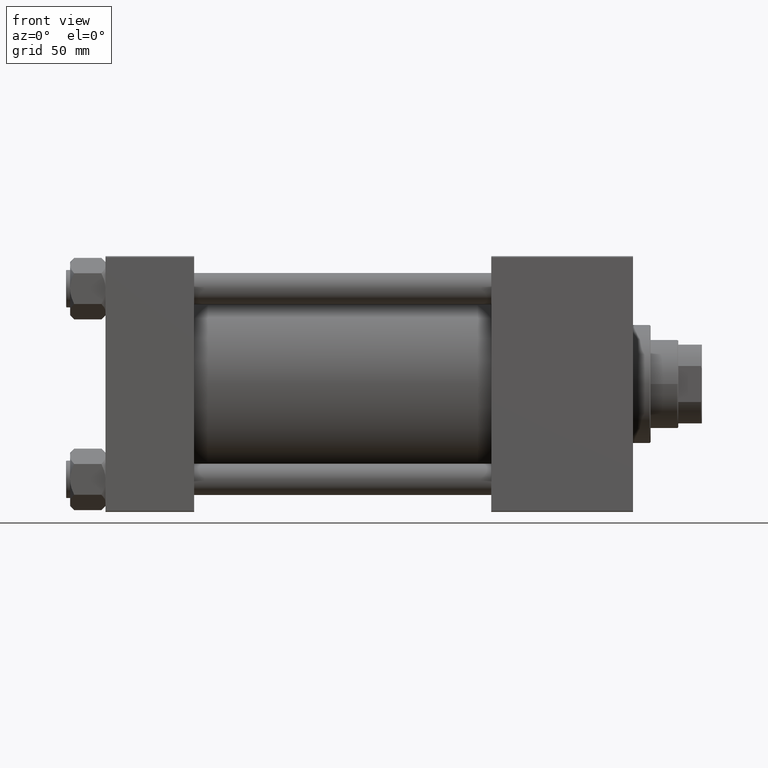
[diagram: clean part render]
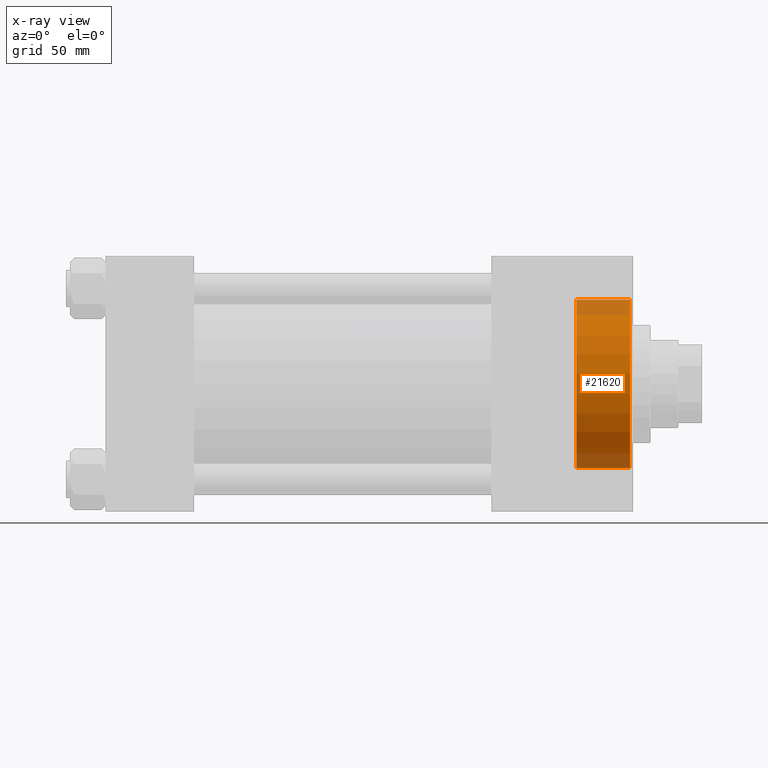
[diagram: x-ray — body ghosted, one internal face saturated and labeled with its STEP entity id]
A machine part, front view, then the same camera in x-ray: the body is ghosted and one INTERNAL B-rep face — a face not visible from any outside direction — is saturated and labeled: STEP entity #21620.
In plain terms, the highlighted cylindrical surface (partial cylindrical patch) has radius 42.75 mm, axis along (1, 0, 0).
Its self-contained STEP definition (entity closure, byte-faithful):
#303 = CARTESIAN_POINT ( 'NONE',  ( 239.3000000000000114, 5.235365066354935472E-15, 42.75000000000000000 ) ) ;
#2445 = DIRECTION ( 'NONE',  ( 0.000000000000000000, 0.000000000000000000, 1.000000000000000000 ) ) ;
#2963 = DIRECTION ( 'NONE',  ( 1.000000000000000000, -0.000000000000000000, -0.000000000000000000 ) ) ;
#3951 = ORIENTED_EDGE ( 'NONE', *, *, #48639, .F. ) ;
#4169 = CARTESIAN_POINT ( 'NONE',  ( 239.3000000000000114, 0.000000000000000000, -42.75000000000000000 ) ) ;
#5199 = CARTESIAN_POINT ( 'NONE',  ( 266.4999999999999432, 5.235365066354935472E-15, 42.75000000000000000 ) ) ;
#6823 = CIRCLE ( 'NONE', #19101, 42.75000000000000000 ) ;
#9145 = CARTESIAN_POINT ( 'NONE',  ( 266.4999999999999432, 0.000000000000000000, 0.000000000000000000 ) ) ;
#9172 = VERTEX_POINT ( 'NONE', #303 ) ;
#9912 = DIRECTION ( 'NONE',  ( 0.000000000000000000, 0.000000000000000000, -1.000000000000000000 ) ) ;
#10589 = CYLINDRICAL_SURFACE ( 'NONE', #48891, 42.75000000000000000 ) ;
#17536 = VECTOR ( 'NONE', #2963, 1000.000000000000000 ) ;
#19101 = AXIS2_PLACEMENT_3D ( 'NONE', #9145, #48978, #2445 ) ;
#20681 = CIRCLE ( 'NONE', #49418, 42.75000000000000000 ) ;
#21396 = DIRECTION ( 'NONE',  ( 1.000000000000000000, -0.000000000000000000, -0.000000000000000000 ) ) ;
#21620 = ADVANCED_FACE ( 'NONE', ( #45050 ), #10589, .F. ) ;
#21896 = CARTESIAN_POINT ( 'NONE',  ( 239.3000000000000114, 0.000000000000000000, 0.000000000000000000 ) ) ;
#22919 = CARTESIAN_POINT ( 'NONE',  ( 239.3000000000000114, 0.000000000000000000, 0.000000000000000000 ) ) ;
#26507 = ORIENTED_EDGE ( 'NONE', *, *, #45203, .T. ) ;
#27438 = VECTOR ( 'NONE', #42103, 1000.000000000000000 ) ;
#30891 = VERTEX_POINT ( 'NONE', #4169 ) ;
#30968 = CARTESIAN_POINT ( 'NONE',  ( 239.3000000000000114, 5.235365066354935472E-15, 42.75000000000000000 ) ) ;
#32250 = VERTEX_POINT ( 'NONE', #47979 ) ;
#38265 = CARTESIAN_POINT ( 'NONE',  ( 239.3000000000000114, 0.000000000000000000, -42.75000000000000000 ) ) ;
#40678 = ORIENTED_EDGE ( 'NONE', *, *, #46696, .T. ) ;
#40953 = EDGE_CURVE ( 'NONE', #9172, #30891, #20681, .T. ) ;
#42103 = DIRECTION ( 'NONE',  ( 1.000000000000000000, -0.000000000000000000, -0.000000000000000000 ) ) ;
#42808 = VERTEX_POINT ( 'NONE', #5199 ) ;
#45050 = FACE_OUTER_BOUND ( 'NONE', #49800, .T. ) ;
#45203 = EDGE_CURVE ( 'NONE', #42808, #32250, #6823, .T. ) ;
#45468 = LINE ( 'NONE', #38265, #27438 ) ;
#46696 = EDGE_CURVE ( 'NONE', #9172, #42808, #49740, .T. ) ;
#47111 = ORIENTED_EDGE ( 'NONE', *, *, #40953, .F. ) ;
#47979 = CARTESIAN_POINT ( 'NONE',  ( 266.4999999999999432, 0.000000000000000000, -42.75000000000000000 ) ) ;
#48639 = EDGE_CURVE ( 'NONE', #30891, #32250, #45468, .T. ) ;
#48719 = DIRECTION ( 'NONE',  ( 1.000000000000000000, 0.000000000000000000, 0.000000000000000000 ) ) ;
#48891 = AXIS2_PLACEMENT_3D ( 'NONE', #21896, #21396, #48899 ) ;
#48899 = DIRECTION ( 'NONE',  ( 0.000000000000000000, 0.000000000000000000, -1.000000000000000000 ) ) ;
#48978 = DIRECTION ( 'NONE',  ( 1.000000000000000000, 0.000000000000000000, 0.000000000000000000 ) ) ;
#49418 = AXIS2_PLACEMENT_3D ( 'NONE', #22919, #48719, #9912 ) ;
#49740 = LINE ( 'NONE', #30968, #17536 ) ;
#49800 = EDGE_LOOP ( 'NONE', ( #47111, #40678, #26507, #3951 ) ) ;